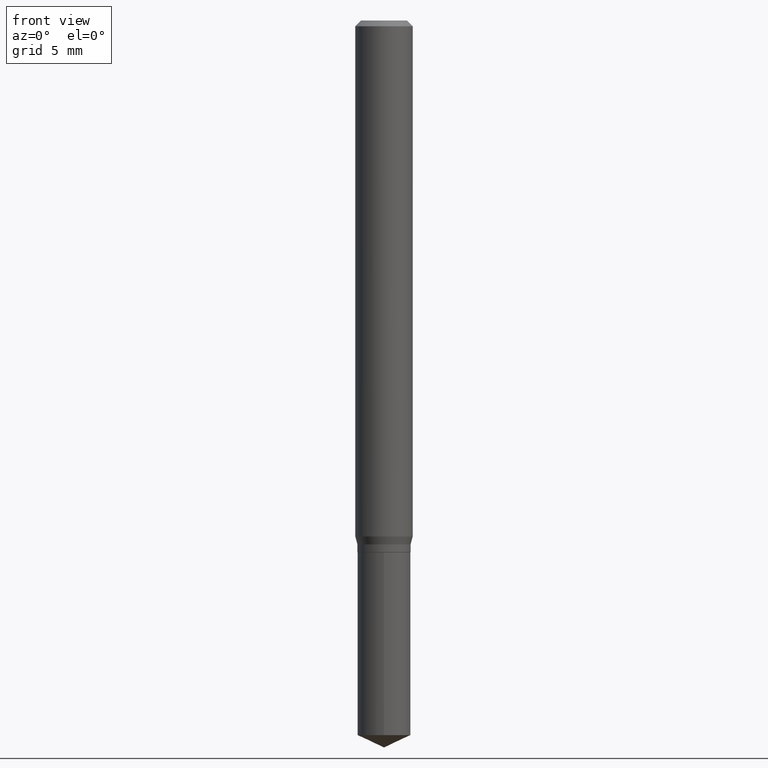
[diagram: clean part render]
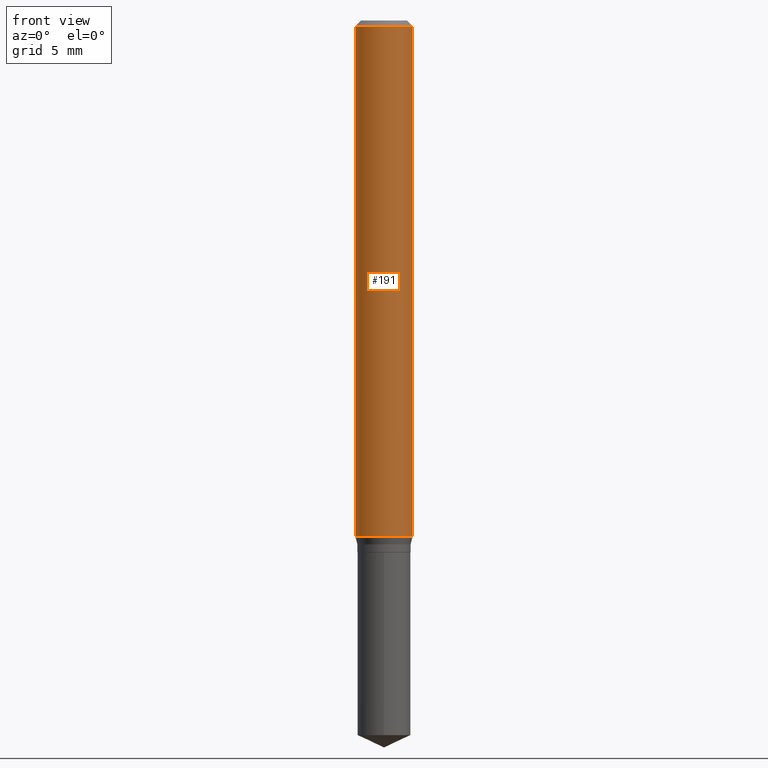
[diagram: same view with one face highlighted and labeled with its STEP entity id]
A machine part, front view. The second image highlights one B-rep face of the part: STEP entity #191.
In plain terms, the highlighted cylindrical surface (edge-blend (fillet) strip) has radius 1.4999 mm, axis along (-0, 0, 1).
Its self-contained STEP definition (entity closure, byte-faithful):
#3 = AXIS2_PLACEMENT_3D ( 'NONE', #294, #446, #60 ) ;
#27 = CARTESIAN_POINT ( 'NONE',  ( 2.888098660104664204E-31, -4.123439461173780263E-17, -0.01181000000000007218 ) ) ;
#38 = EDGE_LOOP ( 'NONE', ( #448, #463, #279, #272 ) ) ;
#55 = EDGE_CURVE ( 'NONE', #373, #351, #440, .T. ) ;
#60 = DIRECTION ( 'NONE',  ( 1.000000000000000000, -6.982962677686265133E-15, 0.000000000000000000 ) ) ;
#68 = CARTESIAN_POINT ( 'NONE',  ( 0.000000000000000000, 0.000000000000000000, 0.000000000000000000 ) ) ;
#82 = VECTOR ( 'NONE', #322, 39.37007874015748143 ) ;
#99 = VERTEX_POINT ( 'NONE', #287 ) ;
#107 = DIRECTION ( 'NONE',  ( -2.445468806185136597E-29, 3.491481338843145583E-15, 1.000000000000000000 ) ) ;
#116 = CARTESIAN_POINT ( 'NONE',  ( -0.05904999999999999832, -1.454783638536150538E-15, -0.01181000000000007218 ) ) ;
#122 = VECTOR ( 'NONE', #231, 39.37007874015748143 ) ;
#124 = VERTEX_POINT ( 'NONE', #258 ) ;
#134 = CIRCLE ( 'NONE', #3, 0.05905000000000013016 ) ;
#143 = CIRCLE ( 'NONE', #152, 0.05904999999999999832 ) ;
#152 = AXIS2_PLACEMENT_3D ( 'NONE', #27, #173, #328 ) ;
#173 = DIRECTION ( 'NONE',  ( -2.445468806185136597E-29, 3.491481338843145583E-15, 1.000000000000000000 ) ) ;
#179 = FACE_OUTER_BOUND ( 'NONE', #38, .T. ) ;
#187 = CARTESIAN_POINT ( 'NONE',  ( 0.05905000000000006771, -4.123439461173745257E-16, 2.879382386107503723E-30 ) ) ;
#191 = ADVANCED_FACE ( 'NONE', ( #179 ), #369, .T. ) ;
#231 = DIRECTION ( 'NONE',  ( -2.445468806185136877E-29, 3.491481338843145188E-15, 1.000000000000000000 ) ) ;
#236 = EDGE_CURVE ( 'NONE', #373, #99, #134, .T. ) ;
#258 = CARTESIAN_POINT ( 'NONE',  ( 0.05904999999999999832, -4.535783407291118600E-16, -0.01181000000000007218 ) ) ;
#272 = ORIENTED_EDGE ( 'NONE', *, *, #286, .F. ) ;
#279 = ORIENTED_EDGE ( 'NONE', *, *, #333, .T. ) ;
#282 = CARTESIAN_POINT ( 'NONE',  ( -0.05905000000000006771, 4.195754854663396409E-16, -2.904631170795525045E-30 ) ) ;
#286 = EDGE_CURVE ( 'NONE', #351, #124, #143, .T. ) ;
#287 = CARTESIAN_POINT ( 'NONE',  ( 0.05905000000000013016, -4.119827799510619225E-15, -1.061865578987074787 ) ) ;
#291 = DIRECTION ( 'NONE',  ( 1.000000000000000000, -6.982962677686266711E-15, 4.876176775795936353E-29 ) ) ;
#293 = AXIS2_PLACEMENT_3D ( 'NONE', #68, #107, #291 ) ;
#294 = CARTESIAN_POINT ( 'NONE',  ( 2.596759149774611245E-29, -3.707483853393244305E-15, -1.061865578987074787 ) ) ;
#322 = DIRECTION ( 'NONE',  ( -2.445468806185136877E-29, 3.491481338843145188E-15, 1.000000000000000000 ) ) ;
#328 = DIRECTION ( 'NONE',  ( 1.000000000000000000, -6.982962677686266711E-15, 0.000000000000000000 ) ) ;
#333 = EDGE_CURVE ( 'NONE', #99, #124, #465, .T. ) ;
#351 = VERTEX_POINT ( 'NONE', #116 ) ;
#357 = CARTESIAN_POINT ( 'NONE',  ( -0.05905000000000013016, -3.287908367926904418E-15, -1.061865578987074787 ) ) ;
#369 = CYLINDRICAL_SURFACE ( 'NONE', #293, 0.05905000000000006771 ) ;
#373 = VERTEX_POINT ( 'NONE', #357 ) ;
#440 = LINE ( 'NONE', #282, #82 ) ;
#446 = DIRECTION ( 'NONE',  ( -2.445468806185136597E-29, 3.491481338843145583E-15, 1.000000000000000000 ) ) ;
#448 = ORIENTED_EDGE ( 'NONE', *, *, #55, .F. ) ;
#463 = ORIENTED_EDGE ( 'NONE', *, *, #236, .T. ) ;
#465 = LINE ( 'NONE', #187, #122 ) ;